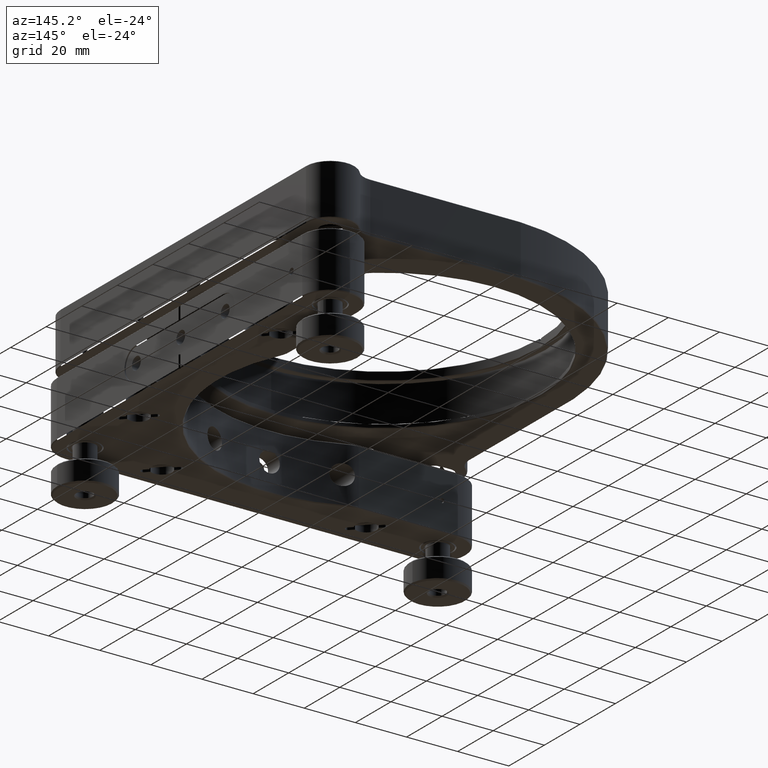
[diagram: clean part render]
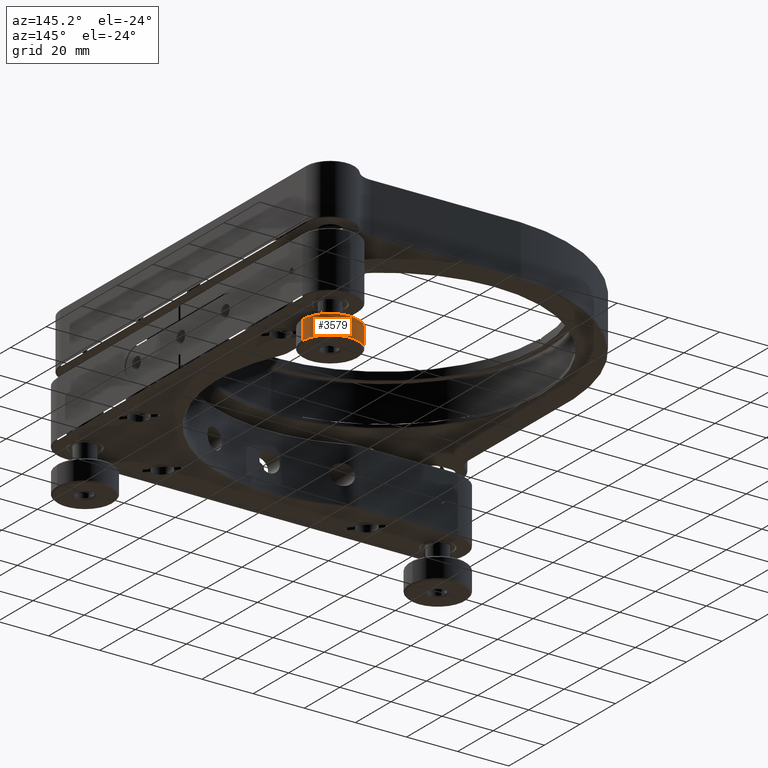
[diagram: same view with one face highlighted and labeled with its STEP entity id]
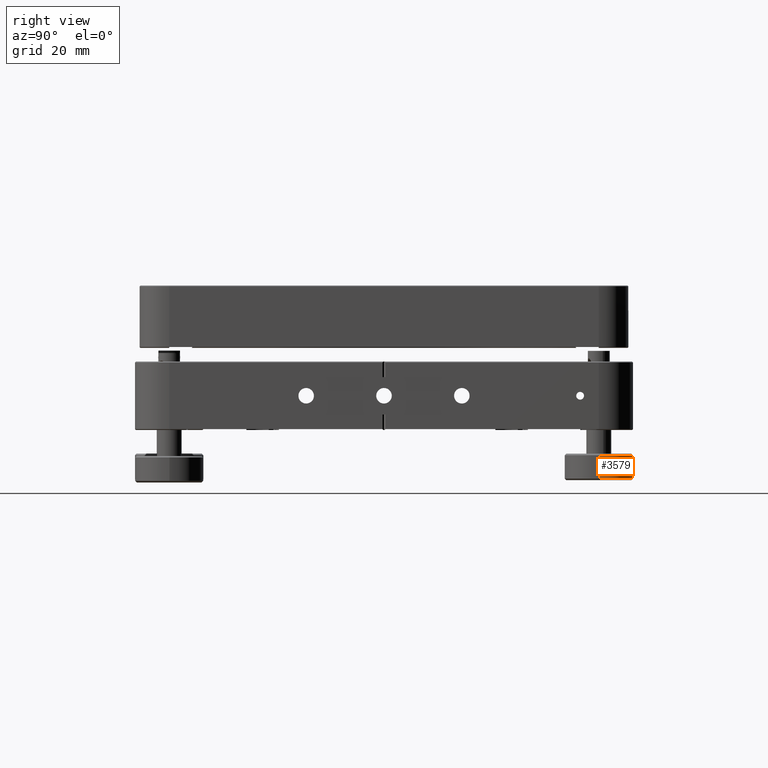
[diagram: same view with one face highlighted and labeled with its STEP entity id]
A machine part, auxiliary view. The second image highlights one B-rep face of the part: STEP entity #3579.
A second angle (right view) of the same face is appended — the face is thin or edge-on in the first view.
In plain terms, the highlighted cylindrical surface (edge-blend (fillet) strip) has radius 11 mm, axis along (0, -0, -1).
Its self-contained STEP definition (entity closure, byte-faithful):
#754 = CARTESIAN_POINT ( 'NONE',  ( 69.00000000000001421, 69.00000000000001421, -26.60050506338831866 ) ) ;
#769 = EDGE_LOOP ( 'NONE', ( #3728, #16862, #16217, #15949 ) ) ;
#1700 = CYLINDRICAL_SURFACE ( 'NONE', #9360, 10.99999999999999822 ) ;
#2053 = CIRCLE ( 'NONE', #7320, 11.00000000000000533 ) ;
#2288 = CARTESIAN_POINT ( 'NONE',  ( 69.00000000000001421, 69.00000000000001421, -19.10050506338831511 ) ) ;
#3515 = VECTOR ( 'NONE', #6769, 1000.000000000000000 ) ;
#3579 = ADVANCED_FACE ( 'NONE', ( #5996 ), #1700, .T. ) ;
#3728 = ORIENTED_EDGE ( 'NONE', *, *, #14216, .T. ) ;
#4312 = EDGE_CURVE ( 'NONE', #6370, #10399, #2053, .T. ) ;
#4320 = VERTEX_POINT ( 'NONE', #8072 ) ;
#4486 = EDGE_CURVE ( 'NONE', #14153, #10399, #12623, .T. ) ;
#5811 = CARTESIAN_POINT ( 'NONE',  ( 69.00000000000001421, 69.00000000000001421, -18.60050506338832221 ) ) ;
#5996 = FACE_OUTER_BOUND ( 'NONE', #769, .T. ) ;
#6370 = VERTEX_POINT ( 'NONE', #7147 ) ;
#6769 = DIRECTION ( 'NONE',  ( 9.708507162879141658E-50, -1.405738883550604191E-50, -1.000000000000000000 ) ) ;
#7147 = CARTESIAN_POINT ( 'NONE',  ( 79.99944176882812030, 69.11081865438603700, -26.60050506338831866 ) ) ;
#7320 = AXIS2_PLACEMENT_3D ( 'NONE', #754, #15001, #17532 ) ;
#8071 = DIRECTION ( 'NONE',  ( 0.9999492517116447265, 0.01007442312600147043, 0.000000000000000000 ) ) ;
#8072 = CARTESIAN_POINT ( 'NONE',  ( 79.99944176882810609, 69.11081865438603700, -19.10050506338831511 ) ) ;
#8858 = EDGE_CURVE ( 'NONE', #4320, #6370, #9006, .T. ) ;
#9006 = LINE ( 'NONE', #17294, #17595 ) ;
#9360 = AXIS2_PLACEMENT_3D ( 'NONE', #5811, #11590, #15607 ) ;
#10399 = VERTEX_POINT ( 'NONE', #13427 ) ;
#10901 = AXIS2_PLACEMENT_3D ( 'NONE', #2288, #16085, #8071 ) ;
#11182 = CIRCLE ( 'NONE', #10901, 11.00000000000000533 ) ;
#11590 = DIRECTION ( 'NONE',  ( 9.708507162879141658E-50, -1.405738883550604191E-50, -1.000000000000000000 ) ) ;
#12623 = LINE ( 'NONE', #16627, #3515 ) ;
#13180 = CARTESIAN_POINT ( 'NONE',  ( 58.00055823117193654, 68.88918134561400564, -19.10050506338831511 ) ) ;
#13427 = CARTESIAN_POINT ( 'NONE',  ( 58.00055823117192944, 68.88918134561400564, -26.60050506338831866 ) ) ;
#14153 = VERTEX_POINT ( 'NONE', #13180 ) ;
#14216 = EDGE_CURVE ( 'NONE', #14153, #4320, #11182, .T. ) ;
#14573 = DIRECTION ( 'NONE',  ( 9.708507162879141658E-50, -1.405738883550604191E-50, -1.000000000000000000 ) ) ;
#15001 = DIRECTION ( 'NONE',  ( -9.708507162879141658E-50, 1.405738883550604191E-50, 1.000000000000000000 ) ) ;
#15607 = DIRECTION ( 'NONE',  ( -0.9999492517116447265, -0.01007442312600147737, 0.000000000000000000 ) ) ;
#15949 = ORIENTED_EDGE ( 'NONE', *, *, #4486, .F. ) ;
#16085 = DIRECTION ( 'NONE',  ( 9.708507162879141658E-50, -1.405738883550604191E-50, -1.000000000000000000 ) ) ;
#16217 = ORIENTED_EDGE ( 'NONE', *, *, #4312, .T. ) ;
#16627 = CARTESIAN_POINT ( 'NONE',  ( 58.00055823117192944, 68.88918134561400564, -18.60050506338832221 ) ) ;
#16862 = ORIENTED_EDGE ( 'NONE', *, *, #8858, .T. ) ;
#17294 = CARTESIAN_POINT ( 'NONE',  ( 79.99944176882812030, 69.11081865438603700, -18.60050506338832221 ) ) ;
#17532 = DIRECTION ( 'NONE',  ( 0.9999492517116447265, 0.01007442312600147043, 0.000000000000000000 ) ) ;
#17595 = VECTOR ( 'NONE', #14573, 1000.000000000000000 ) ;